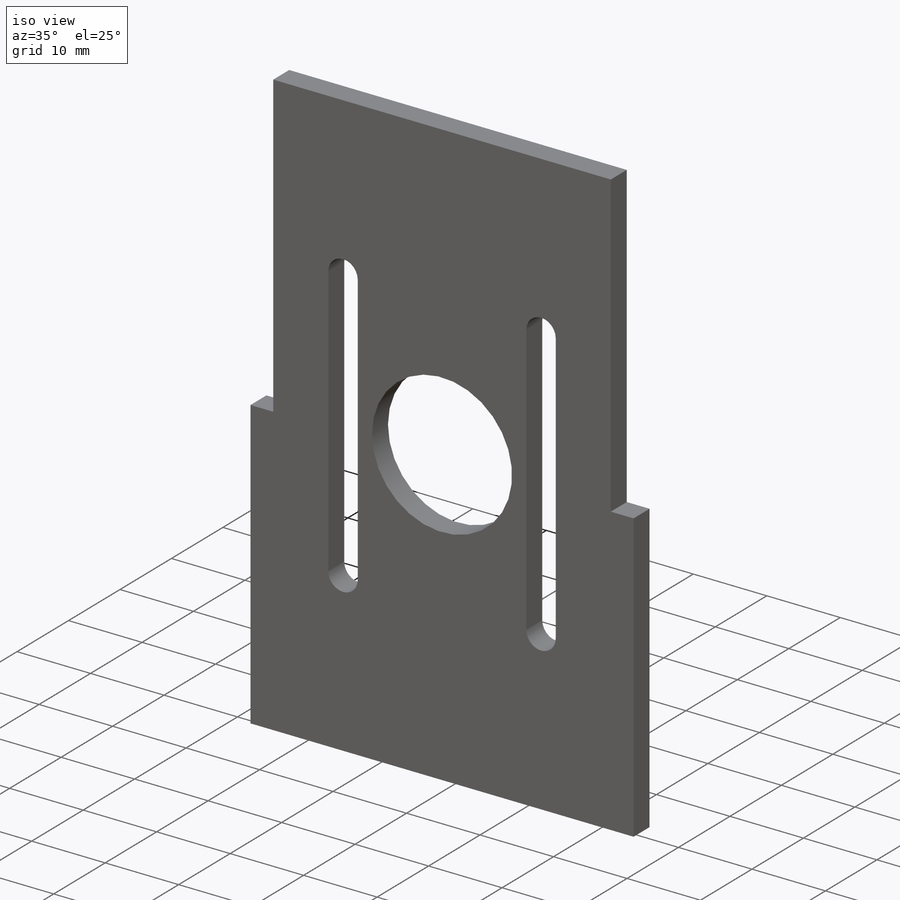
[diagram: iso view]
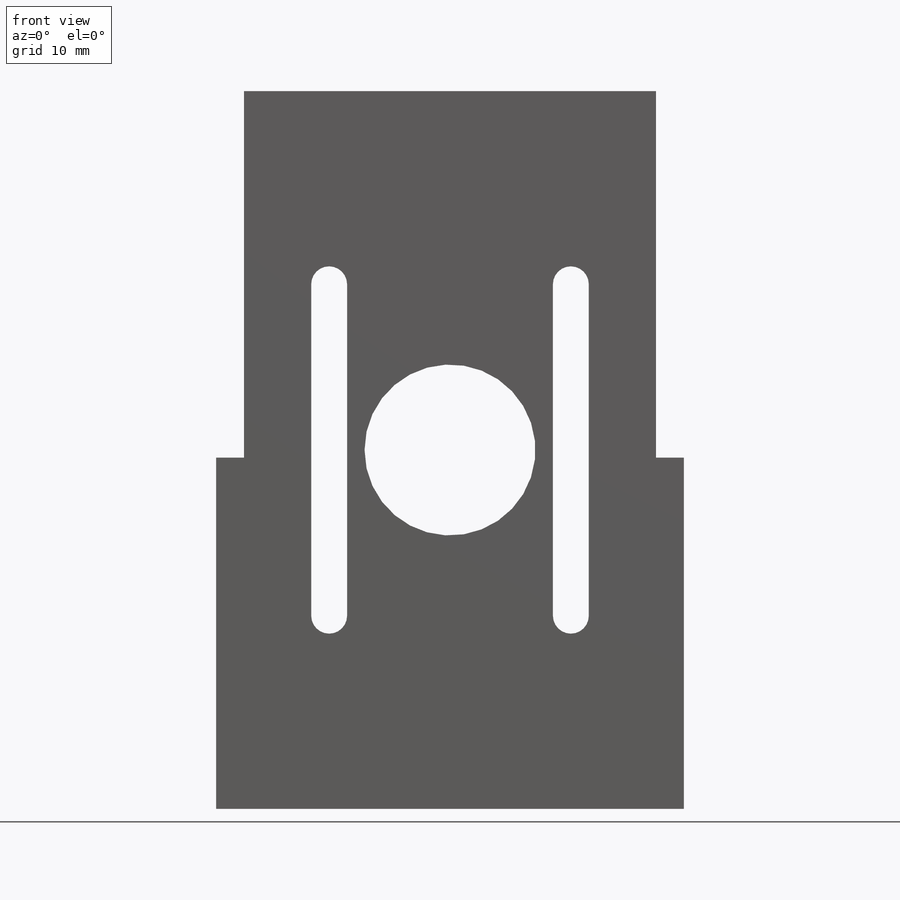
[diagram: front view]
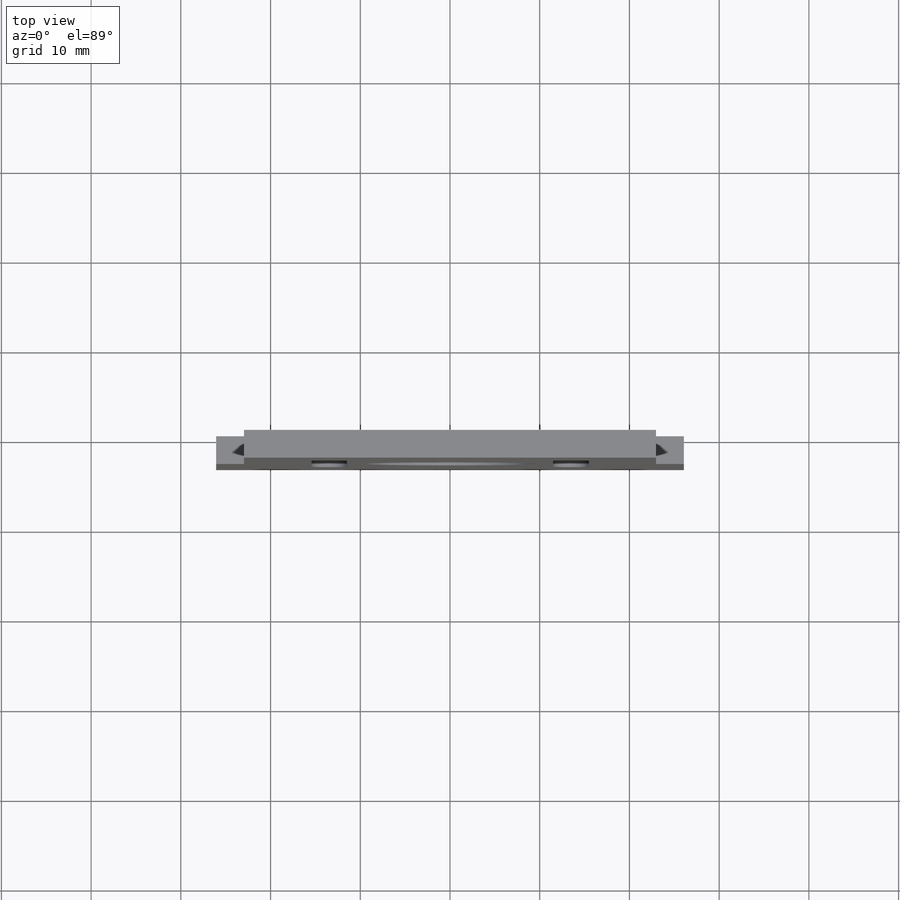
[diagram: top view]
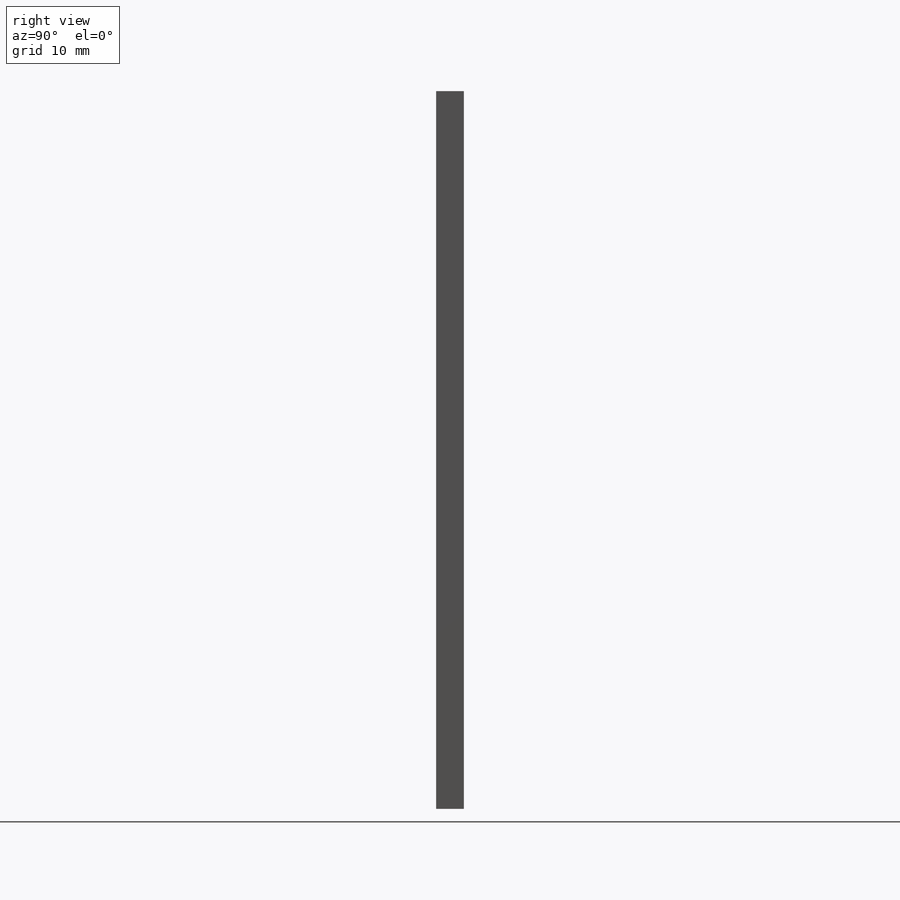
[diagram: right view]
SOLIDWORKS PART (.sldprt)
format: sldprt  version: not decoded by parser v0  size: 1,091,072 bytes
history: native  units: mm
features: sketch x5, extrude x4, material x1, cut_extrude x1 (+13 scaffold rows collapsed)
feature tree (24):
  scaffold x13  (default folders/planes/origin — collapsed)
  material  "Teak"
  sketch  "Sketch3"  dims[c1.D1=50.8mm c1.D5=~6.76684mm c1.D6=5.0mm c1.D2=45.93mm c1.D3=80.0mm c2.D1=40.7mm c2.D4=25.0mm c2.D5=10.0mm c2.D7=49.0mm c2.D6=49.0mm c3.D7=5.0mm]
  extrude  "Boss-Extrude3"  Depth=3.1mm
  sketch  "Sketch4"  dims[D1=3.1mm]
  extrude  "Boss-Extrude4"  [1 undecoded]
  sketch  "Sketch5"  dims[c1.D1=50.8mm c1.D5=~6.76684mm c1.D6=5.0mm c1.D2=45.93mm c1.D3=80.0mm c2.D1=40.7mm c2.D4=25.0mm c2.D5=10.0mm c2.D7=49.0mm c2.D6=49.0mm c3.D7=5.0mm]
  extrude  "Boss-Extrude5"  Depth=3.1mm
  sketch  "Sketch6"  dims[D1=3.1mm D2=0.0mm D3=0.0mm]
  extrude  "Boss-Extrude6"  [1 undecoded]
  sketch  "Sketch7"  dims[c1.D4=2.5mm c1.D1=5.0mm c1.D5=19.05mm c1.D2=2.0mm c1.D6=2.0mm c2.D1=40.7mm c2.D2=50.0mm c2.D3=10.0mm c2.D4=~26.088437mm c3.D4=~0.918749deg c4.D4=~13.044219mm c5.D4=~0.918749deg c6.D4=~13.044219mm c6.D5=30.0mm c6.D6=49.0mm c6.D7=80.0mm c6.D8=80.0mm c6.D3=38.1mm c7.D4=0.0mm c7.D1=~26.940768mm c7.D3=0.0mm c7.D2=5.0mm c8.D4=4.0mm]
  cut_extrude  "Cut-Extrude2"  [1 undecoded]
decode coverage: 7 of 10 modeling features carry decoded parameters
note: ~ marks probable driven/reference dimensions
note: 3 parameter values undecoded
summary: no parameter record found for 3 features
note: suppression state not decoded; provenance and decode notes live in map.json
